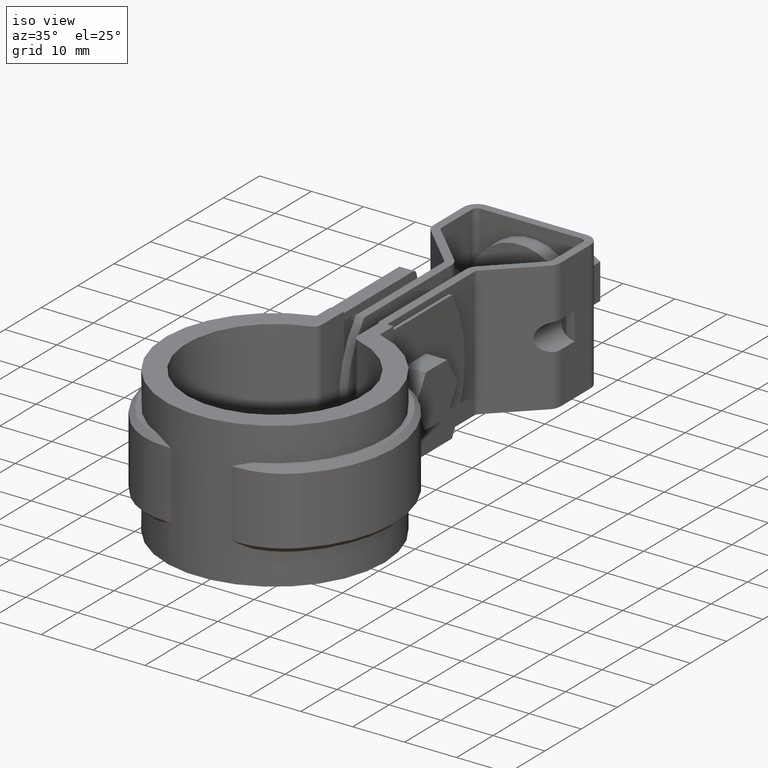
[diagram: clean part render]
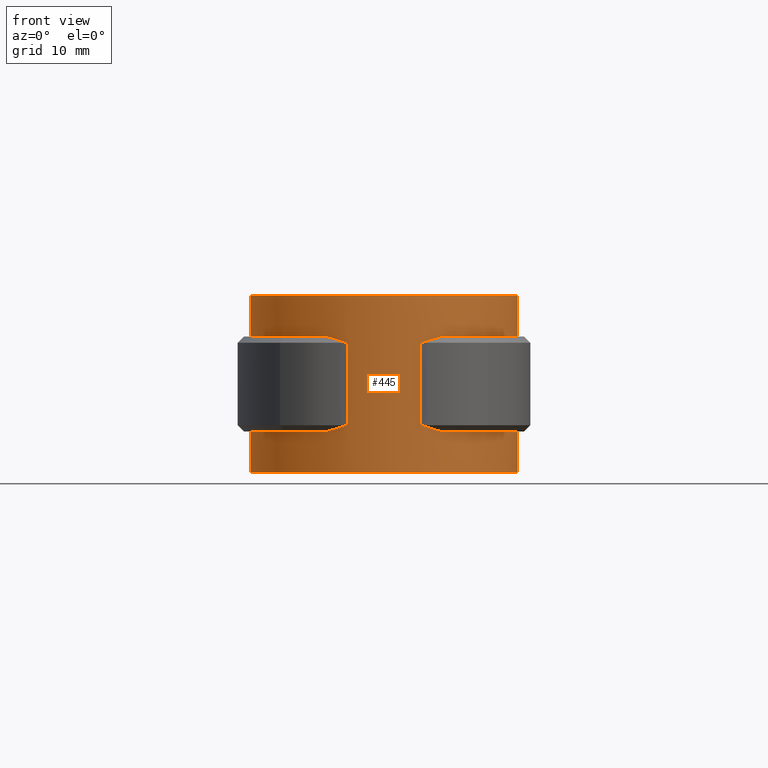
[diagram: tour spotlight — one face highlighted and labeled with its STEP entity id]
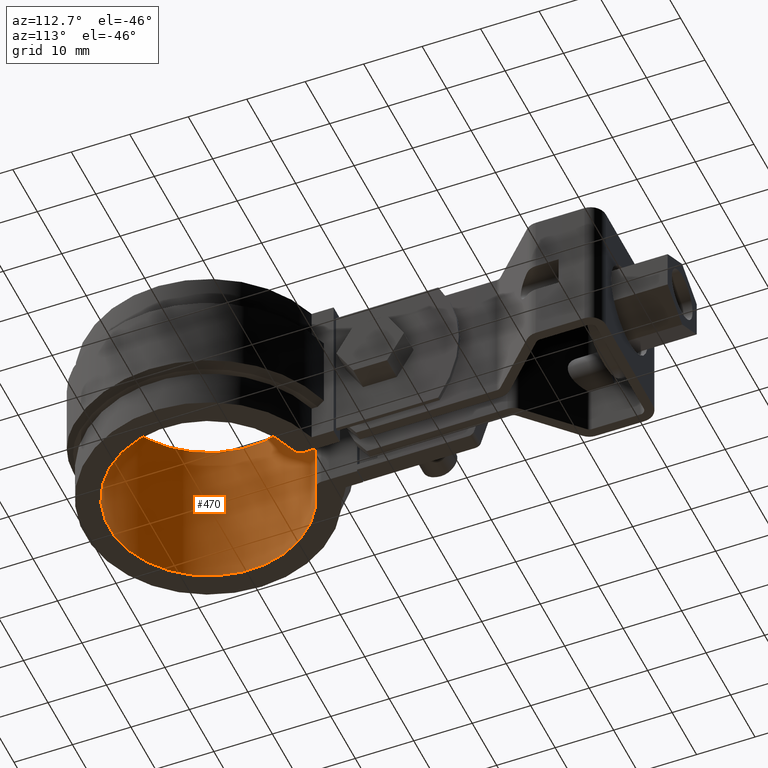
[diagram: tour spotlight — one face highlighted and labeled with its STEP entity id]
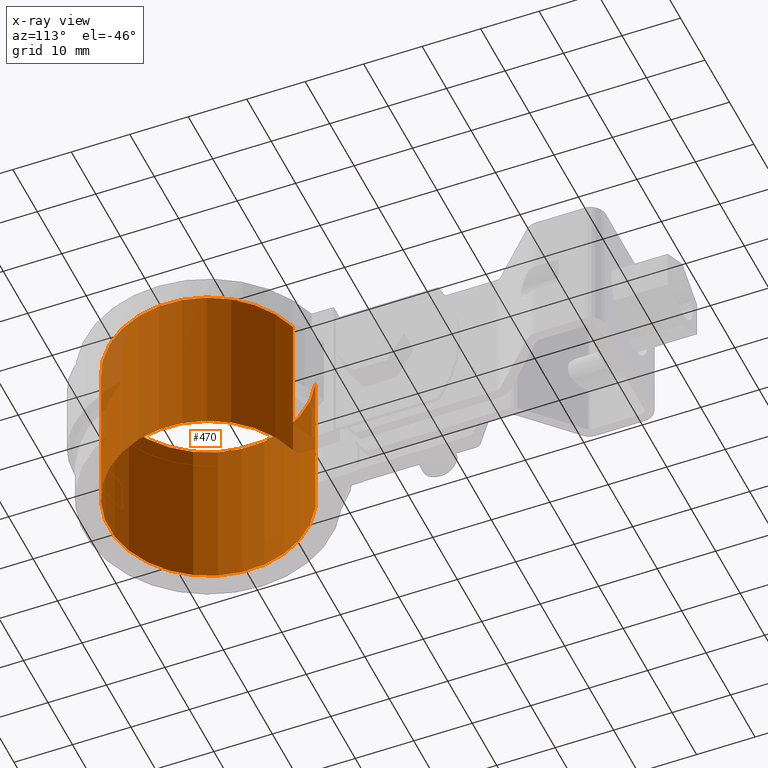
[diagram: x-ray of the same camera — body ghosted, this tour face saturated]
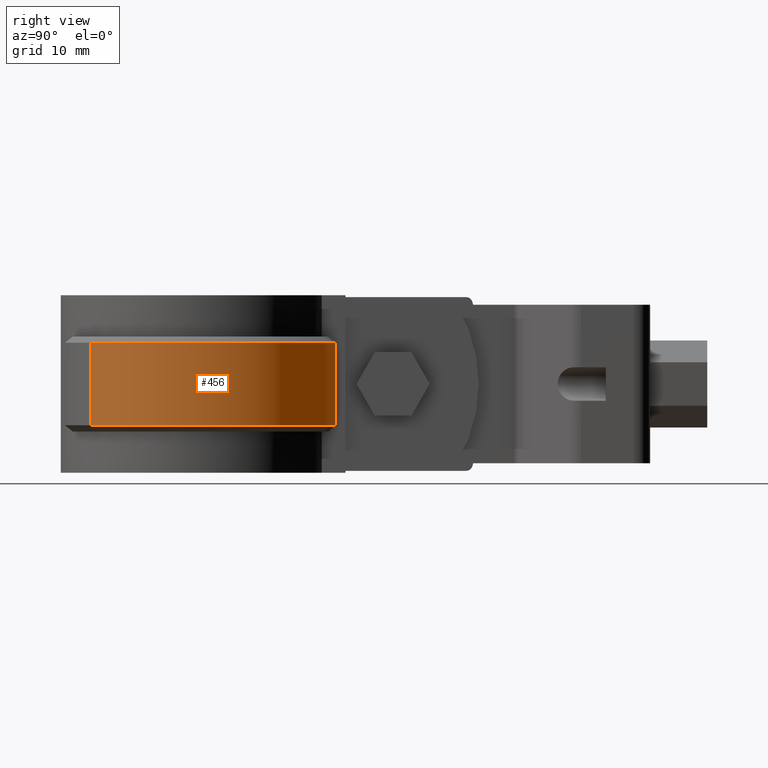
[diagram: tour spotlight — one face highlighted and labeled with its STEP entity id]
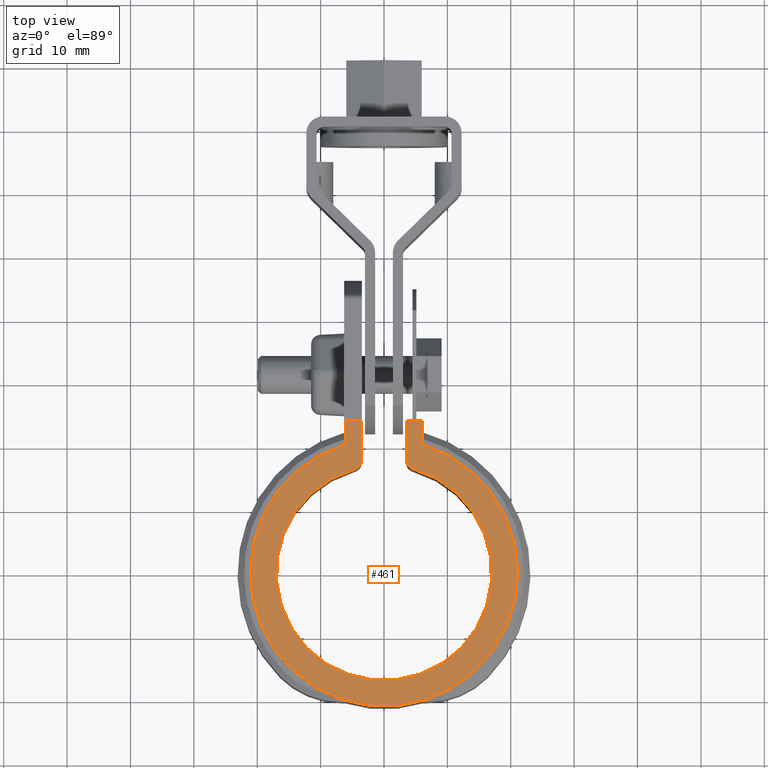
[diagram: tour spotlight — one face highlighted and labeled with its STEP entity id]
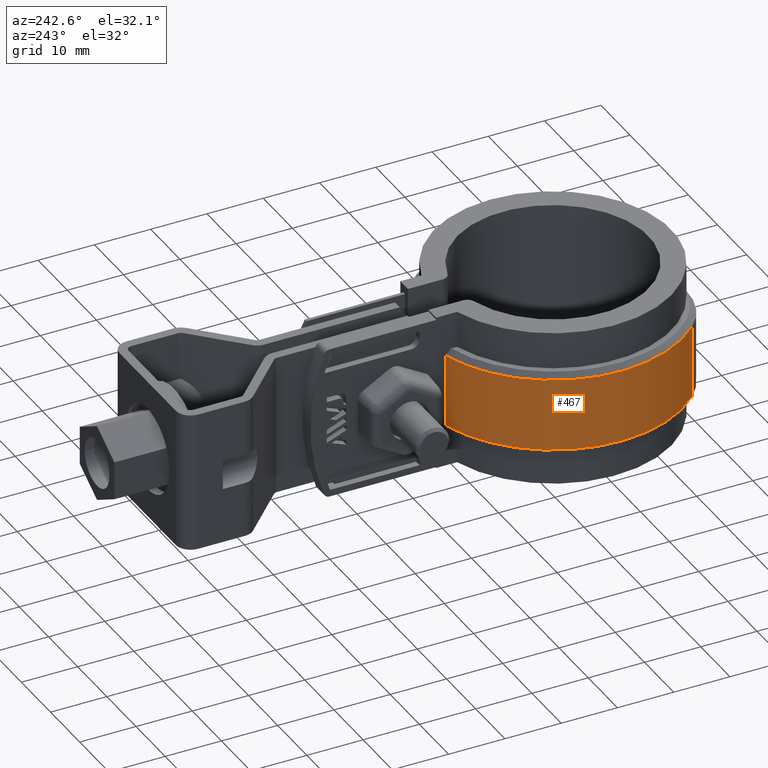
[diagram: tour spotlight — one face highlighted and labeled with its STEP entity id]
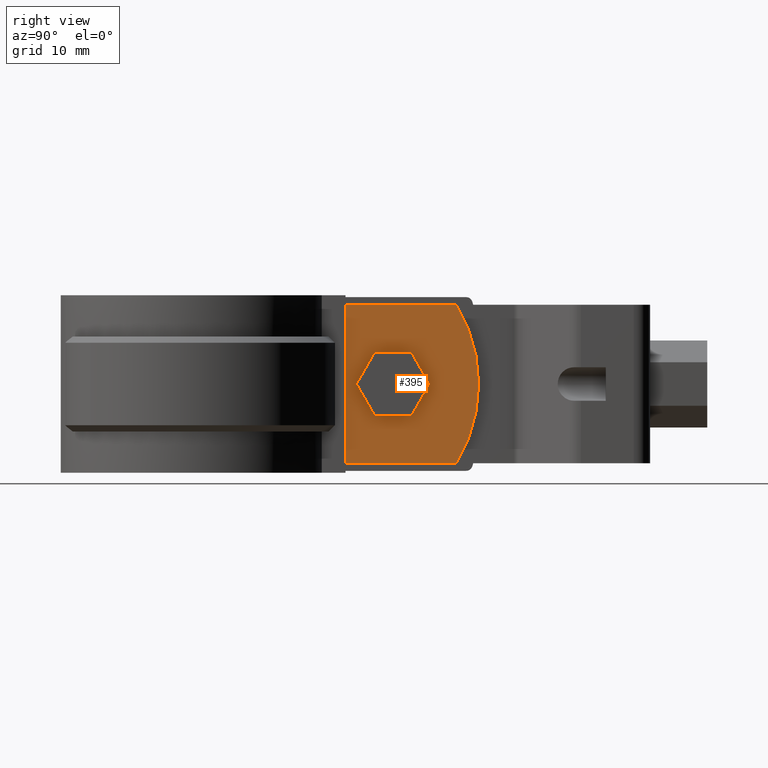
[diagram: tour spotlight — one face highlighted and labeled with its STEP entity id]
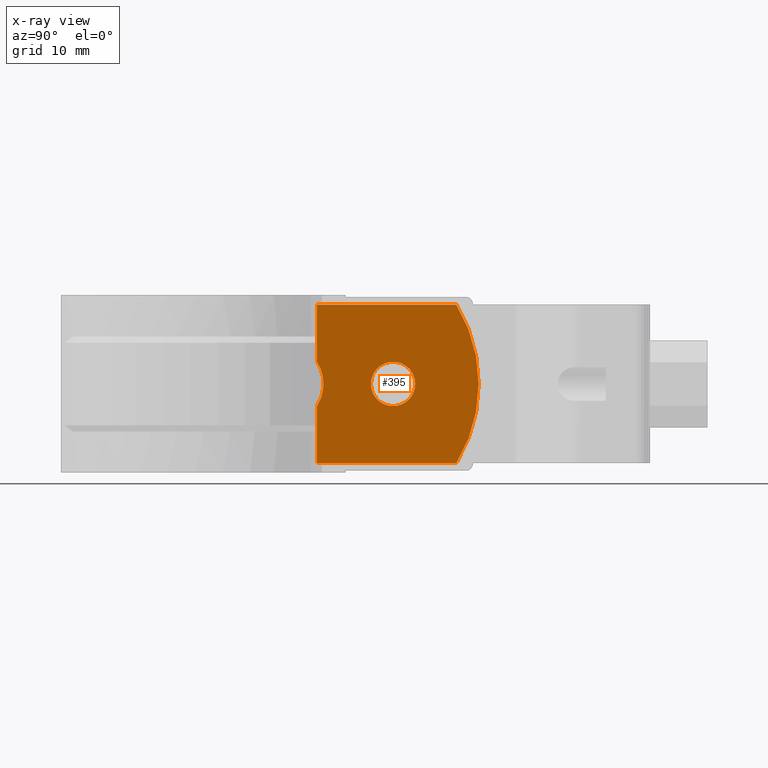
[diagram: x-ray of the same camera — body ghosted, this tour face saturated]
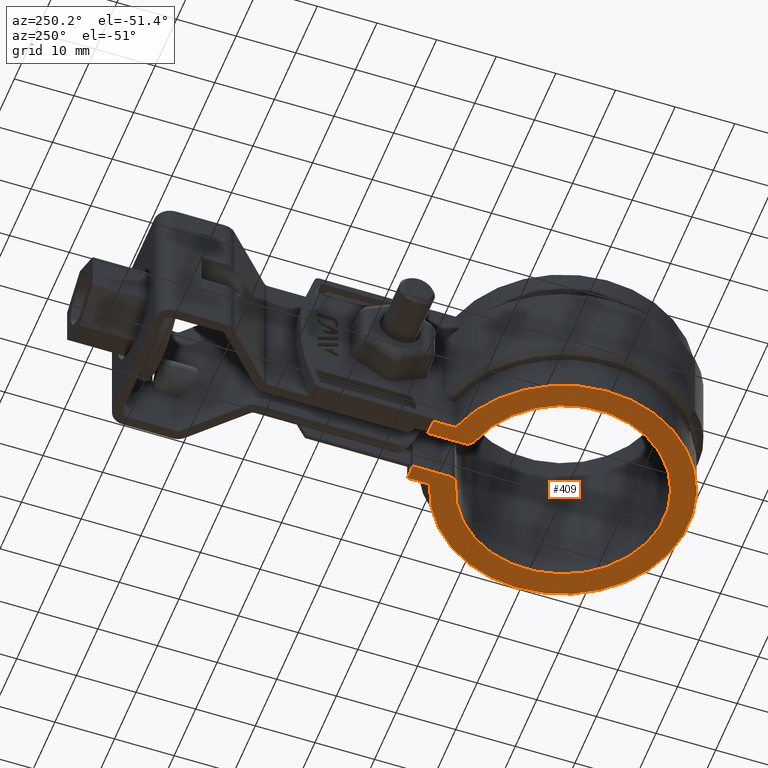
[diagram: tour spotlight — one face highlighted and labeled with its STEP entity id]
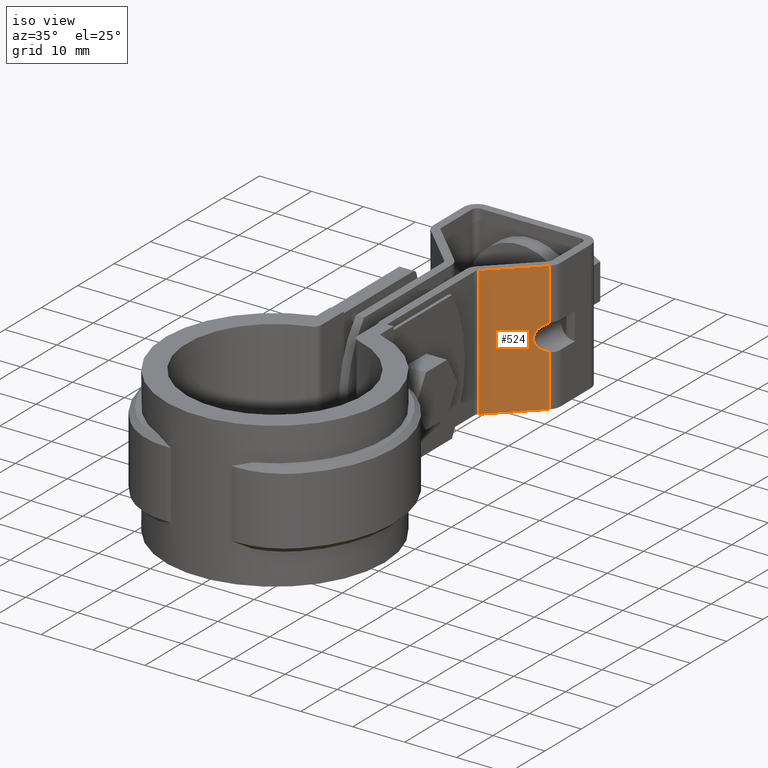
[diagram: tour spotlight — one face highlighted and labeled with its STEP entity id]
A machine part: a face-by-face anatomy tour. The part has 331 B-rep faces; the first image is the clean iso view, then the 8 largest visible faces are spotlighted one at a time (largest first), each with its STEP entity span.

Face 1 — front view, entity #445. In plain terms, the highlighted cylindrical surface (partial cylindrical patch) has radius 21.095 mm, axis along (0, 0, -1).
Definition (entity closure, byte-faithful):
#445 = ADVANCED_FACE( '', ( #866 ), #867, .T. );
#866 = FACE_OUTER_BOUND( '', #1959, .T. );
#867 = CYLINDRICAL_SURFACE( '', #1960, 21.0950000000000 );
#1959 = EDGE_LOOP( '', ( #4056, #4057, #4058, #4059, #4060, #4061, #4062, #4063, #4064, #4065, #4066, #4067, #4068, #4069, #4070, #4071, #4072, #4073, #4074, #4075 ) );
#1960 = AXIS2_PLACEMENT_3D( '', #4076, #4077, #4078 );
#4056 = ORIENTED_EDGE( '', *, *, #6408, .F. );
#4057 = ORIENTED_EDGE( '', *, *, #6409, .T. );
#4058 = ORIENTED_EDGE( '', *, *, #6410, .T. );
#4059 = ORIENTED_EDGE( '', *, *, #6411, .F. );
#4060 = ORIENTED_EDGE( '', *, *, #6412, .T. );
#4061 = ORIENTED_EDGE( '', *, *, #6413, .T. );
#4062 = ORIENTED_EDGE( '', *, *, #6414, .T. );
#4063 = ORIENTED_EDGE( '', *, *, #6266, .F. );
#4064 = ORIENTED_EDGE( '', *, *, #6256, .T. );
#4065 = ORIENTED_EDGE( '', *, *, #6415, .T. );
#4066 = ORIENTED_EDGE( '', *, *, #6416, .F. );
#4067 = ORIENTED_EDGE( '', *, *, #6417, .T. );
#4068 = ORIENTED_EDGE( '', *, *, #6418, .T. );
#4069 = ORIENTED_EDGE( '', *, *, #6419, .T. );
#4070 = ORIENTED_EDGE( '', *, *, #6420, .T. );
#4071 = ORIENTED_EDGE( '', *, *, #6407, .T. );
#4072 = ORIENTED_EDGE( '', *, *, #6421, .T. );
#4073 = ORIENTED_EDGE( '', *, *, #6422, .T. );
#4074 = ORIENTED_EDGE( '', *, *, #6423, .F. );
#4075 = ORIENTED_EDGE( '', *, *, #6272, .F. );
#4076 = CARTESIAN_POINT( '', ( -4.33680868994202E-015, 0.000000000000000, -26.5000000000000 ) );
#4077 = DIRECTION( '', ( 0.000000000000000, 0.000000000000000, -1.00000000000000 ) );
#4078 = DIRECTION( '', ( -1.00000000000000, 6.07153216591882E-017, 0.000000000000000 ) );
#6256 = EDGE_CURVE( '', #7274, #7272, #7275, .T. );
#6266 = EDGE_CURVE( '', #7274, #7293, #7294, .T. );
#6272 = EDGE_CURVE( '', #7303, #7290, #7305, .T. );
#6407 = EDGE_CURVE( '', #7526, #7532, #7534, .T. );
#6408 = EDGE_CURVE( '', #7535, #7303, #7536, .T. );
#6409 = EDGE_CURVE( '', #7535, #7537, #7538, .F. );
#6410 = EDGE_CURVE( '', #7537, #7539, #7540, .T. );
#6411 = EDGE_CURVE( '', #7541, #7539, #7542, .T. );
#6412 = EDGE_CURVE( '', #7541, #7543, #7544, .F. );
#6413 = EDGE_CURVE( '', #7543, #7545, #7546, .T. );
#6414 = EDGE_CURVE( '', #7545, #7293, #7547, .T. );
#6415 = EDGE_CURVE( '', #7272, #7548, #7549, .T. );
#6416 = EDGE_CURVE( '', #7550, #7548, #7551, .T. );
#6417 = EDGE_CURVE( '', #7550, #7552, #7553, .F. );
#6418 = EDGE_CURVE( '', #7552, #7554, #7555, .F. );
#6419 = EDGE_CURVE( '', #7554, #7556, #7557, .T. );
#6420 = EDGE_CURVE( '', #7556, #7526, #7558, .T. );
#6421 = EDGE_CURVE( '', #7532, #7559, #7560, .T. );
#6422 = EDGE_CURVE( '', #7559, #7561, #7562, .T. );
#6423 = EDGE_CURVE( '', #7290, #7561, #7563, .T. );
#7272 = VERTEX_POINT( '', #9609 );
#7274 = VERTEX_POINT( '', #9612 );
#7275 = CIRCLE( '', #9613, 21.0950000000000 );
#7290 = VERTEX_POINT( '', #9632 );
#7293 = VERTEX_POINT( '', #9637 );
#7294 = LINE( '', #9638, #9639 );
#7303 = VERTEX_POINT( '', #9656 );
#7305 = LINE( '', #9659, #9660 );
#7526 = VERTEX_POINT( '', #10683 );
#7532 = VERTEX_POINT( '', #10691 );
#7534 = B_SPLINE_CURVE_WITH_KNOTS( '', 3, ( #10693, #10694, #10695, #10696 ), .UNSPECIFIED., .F., .F., ( 4, 4 ), ( 0.00442606500985391, 0.00694777175343142 ), .UNSPECIFIED. );
#7535 = VERTEX_POINT( '', #10697 );
#7536 = CIRCLE( '', #10698, 21.0950000000000 );
#7537 = VERTEX_POINT( '', #10699 );
#7538 = B_SPLINE_CURVE_WITH_KNOTS( '', 3, ( #10700, #10701, #10702, #10703 ), .UNSPECIFIED., .F., .F., ( 4, 4 ), ( 0.00442606500985392, 0.00694777175343142 ), .UNSPECIFIED. );
#7539 = VERTEX_POINT( '', #10704 );
#7540 = ELLIPSE( '', #10705, 29.8328350982605, 21.0950000000000 );
#7541 = VERTEX_POINT( '', #10706 );
#7542 = LINE( '', #10707, #10708 );
#7543 = VERTEX_POINT( '', #10709 );
#7544 = ELLIPSE( '', #10710, 29.8328350982605, 21.0950000000000 );
#7545 = VERTEX_POINT( '', #10711 );
#7546 = B_SPLINE_CURVE_WITH_KNOTS( '', 3, ( #10712, #10713, #10714, #10715 ), .UNSPECIFIED., .F., .F., ( 4, 4 ), ( 0.00442606500985394, 0.00694777175343143 ), .UNSPECIFIED. );
#7547 = CIRCLE( '', #10716, 21.0950000000000 );
#7548 = VERTEX_POINT( '', #10717 );
#7549 = LINE( '', #10718, #10719 );
#7550 = VERTEX_POINT( '', #10720 );
#7551 = CIRCLE( '', #10721, 21.0950000000000 );
#7552 = VERTEX_POINT( '', #10722 );
#7553 = B_SPLINE_CURVE_WITH_KNOTS( '', 3, ( #10723, #10724, #10725, #10726 ), .UNSPECIFIED., .F., .F., ( 4, 4 ), ( 0.00442606500985392, 0.00694777175343141 ), .UNSPECIFIED. );
#7554 = VERTEX_POINT( '', #10727 );
#7555 = ELLIPSE( '', #10728, 29.8328350982605, 21.0950000000000 );
#7556 = VERTEX_POINT( '', #10729 );
#7557 = LINE( '', #10730, #10731 );
#7558 = ELLIPSE( '', #10732, 29.8328350982605, 21.0950000000000 );
#7559 = VERTEX_POINT( '', #10733 );
#7560 = CIRCLE( '', #10734, 21.0950000000000 );
#7561 = VERTEX_POINT( '', #10735 );
#7562 = LINE( '', #10736, #10737 );
#7563 = CIRCLE( '', #10738, 21.0950000000000 );
#9609 = CARTESIAN_POINT( '', ( 6.10000000000000, 20.1937867919813, -26.5000000000000 ) );
#9612 = CARTESIAN_POINT( '', ( -6.10000000000000, 20.1937867919813, -26.5000000000000 ) );
#9613 = AXIS2_PLACEMENT_3D( '', #12473, #12474, #12475 );
#9632 = CARTESIAN_POINT( '', ( -6.10000000000000, 20.1937867919813, 1.50000000000000 ) );
#9637 = CARTESIAN_POINT( '', ( -6.10000000000000, 20.1937867919813, -20.0000000000000 ) );
#9638 = CARTESIAN_POINT( '', ( -6.10000000000000, 20.1937867919813, -26.5000000000000 ) );
#9639 = VECTOR( '', #12491, 1000.00000000000 );
#9656 = CARTESIAN_POINT( '', ( -6.10000000000000, 20.1937867919813, -5.00000000000000 ) );
#9659 = CARTESIAN_POINT( '', ( -6.10000000000000, 20.1937867919813, -26.5000000000000 ) );
#9660 = VECTOR( '', #12495, 1000.00000000000 );
#10683 = CARTESIAN_POINT( '', ( 6.74778667416211, -19.9866555481401, -5.70665554814012 ) );
#10691 = CARTESIAN_POINT( '', ( 9.00579582913148, -19.0760233404135, -5.00000000000000 ) );
#10693 = CARTESIAN_POINT( '', ( 6.74778667416212, -19.9866555481401, -5.70665554814012 ) );
#10694 = CARTESIAN_POINT( '', ( 7.50699175994535, -19.7303368284591, -5.45033682845913 ) );
#10695 = CARTESIAN_POINT( '', ( 8.25945996055681, -19.4283687078098, -5.21289271223883 ) );
#10696 = CARTESIAN_POINT( '', ( 9.00579582913148, -19.0760233404134, -5.00000000000000 ) );
#10697 = CARTESIAN_POINT( '', ( -9.00579582913148, -19.0760233404135, -5.00000000000000 ) );
#10698 = AXIS2_PLACEMENT_3D( '', #12634, #12635, #12636 );
#10699 = CARTESIAN_POINT( '', ( -6.74778667416212, -19.9866555481401, -5.70665554814012 ) );
#10700 = CARTESIAN_POINT( '', ( -6.74778667416212, -19.9866555481401, -5.70665554814012 ) );
#10701 = CARTESIAN_POINT( '', ( -7.50699175994536, -19.7303368284591, -5.45033682845913 ) );
#10702 = CARTESIAN_POINT( '', ( -8.25945996055681, -19.4283687078099, -5.21289271223882 ) );
#10703 = CARTESIAN_POINT( '', ( -9.00579582913148, -19.0760233404135, -5.00000000000000 ) );
#10704 = CARTESIAN_POINT( '', ( -5.80694627149245, -20.2800000000000, -6.00000000000000 ) );
#10705 = AXIS2_PLACEMENT_3D( '', #12637, #12638, #12639 );
#10706 = CARTESIAN_POINT( '', ( -5.80694627149245, -20.2800000000000, -19.0000000000000 ) );
#10707 = CARTESIAN_POINT( '', ( -5.80694627149245, -20.2800000000000, -20.0000000000000 ) );
#10708 = VECTOR( '', #12640, 1000.00000000000 );
#10709 = CARTESIAN_POINT( '', ( -6.74778667416212, -19.9866555481401, -19.2933444518599 ) );
#10710 = AXIS2_PLACEMENT_3D( '', #12641, #12642, #12643 );
#10711 = CARTESIAN_POINT( '', ( -9.00579582913148, -19.0760233404135, -20.0000000000000 ) );
#10712 = CARTESIAN_POINT( '', ( -6.74778667416213, -19.9866555481401, -19.2933444518599 ) );
#10713 = CARTESIAN_POINT( '', ( -7.50699175994536, -19.7303368284591, -19.5496631715409 ) );
#10714 = CARTESIAN_POINT( '', ( -8.25945996055681, -19.4283687078099, -19.7871072877612 ) );
#10715 = CARTESIAN_POINT( '', ( -9.00579582913148, -19.0760233404135, -20.0000000000000 ) );
#10716 = AXIS2_PLACEMENT_3D( '', #12644, #12645, #12646 );
#10717 = CARTESIAN_POINT( '', ( 6.10000000000000, 20.1937867919813, -20.0000000000000 ) );
#10718 = CARTESIAN_POINT( '', ( 6.10000000000000, 20.1937867919813, -26.5000000000000 ) );
#10719 = VECTOR( '', #12647, 1000.00000000000 );
#10720 = CARTESIAN_POINT( '', ( 9.00579582913148, -19.0760233404135, -20.0000000000000 ) );
#10721 = AXIS2_PLACEMENT_3D( '', #12648, #12649, #12650 );
#10722 = CARTESIAN_POINT( '', ( 6.74778667416212, -19.9866555481401, -19.2933444518599 ) );
#10723 = CARTESIAN_POINT( '', ( 6.74778667416213, -19.9866555481401, -19.2933444518599 ) );
#10724 = CARTESIAN_POINT( '', ( 7.50699175994536, -19.7303368284591, -19.5496631715409 ) );
#10725 = CARTESIAN_POINT( '', ( 8.25945996055681, -19.4283687078099, -19.7871072877612 ) );
#10726 = CARTESIAN_POINT( '', ( 9.00579582913148, -19.0760233404135, -20.0000000000000 ) );
#10727 = CARTESIAN_POINT( '', ( 5.80694627149244, -20.2800000000000, -19.0000000000000 ) );
#10728 = AXIS2_PLACEMENT_3D( '', #12651, #12652, #12653 );
#10729 = CARTESIAN_POINT( '', ( 5.80694627149244, -20.2800000000000, -6.00000000000000 ) );
#10730 = CARTESIAN_POINT( '', ( 5.80694627149244, -20.2800000000000, -20.0000000000000 ) );
#10731 = VECTOR( '', #12654, 1000.00000000000 );
#10732 = AXIS2_PLACEMENT_3D( '', #12655, #12656, #12657 );
#10733 = CARTESIAN_POINT( '', ( 6.10000000000000, 20.1937867919813, -5.00000000000000 ) );
#10734 = AXIS2_PLACEMENT_3D( '', #12658, #12659, #12660 );
#10735 = CARTESIAN_POINT( '', ( 6.10000000000000, 20.1937867919813, 1.50000000000000 ) );
#10736 = CARTESIAN_POINT( '', ( 6.10000000000000, 20.1937867919813, -26.5000000000000 ) );
#10737 = VECTOR( '', #12661, 1000.00000000000 );
#10738 = AXIS2_PLACEMENT_3D( '', #12662, #12663, #12664 );
#12473 = CARTESIAN_POINT( '', ( -4.33680868994202E-015, 0.000000000000000, -26.5000000000000 ) );
#12474 = DIRECTION( '', ( 0.000000000000000, 0.000000000000000, 1.00000000000000 ) );
#12475 = DIRECTION( '', ( 1.00000000000000, -6.07153216591882E-017, 0.000000000000000 ) );
#12491 = DIRECTION( '', ( 0.000000000000000, 0.000000000000000, 1.00000000000000 ) );
#12495 = DIRECTION( '', ( 0.000000000000000, 0.000000000000000, 1.00000000000000 ) );
#12634 = CARTESIAN_POINT( '', ( -8.67361737988404E-016, -6.93889390390723E-015, -5.00000000000000 ) );
#12635 = DIRECTION( '', ( 0.000000000000000, 0.000000000000000, -1.00000000000000 ) );
#12636 = DIRECTION( '', ( 1.00000000000000, -5.55111512312578E-017, 0.000000000000000 ) );
#12637 = CARTESIAN_POINT( '', ( -4.33680868994202E-015, 0.000000000000000, 14.2800000000000 ) );
#12638 = DIRECTION( '', ( 0.000000000000000, -0.707106781186548, 0.707106781186548 ) );
#12639 = DIRECTION( '', ( 0.000000000000000, 0.707106781186548, 0.707106781186548 ) );
#12640 = DIRECTION( '', ( 0.000000000000000, 0.000000000000000, 1.00000000000000 ) );
#12641 = CARTESIAN_POINT( '', ( -4.33680868994202E-015, 0.000000000000000, -39.2800000000000 ) );
#12642 = DIRECTION( '', ( 0.000000000000000, 0.707106781186548, 0.707106781186548 ) );
#12643 = DIRECTION( '', ( 0.000000000000000, -0.707106781186548, 0.707106781186548 ) );
#12644 = CARTESIAN_POINT( '', ( -8.67361737988404E-016, -6.93889390390723E-015, -20.0000000000000 ) );
#12645 = DIRECTION( '', ( 0.000000000000000, 0.000000000000000, -1.00000000000000 ) );
#12646 = DIRECTION( '', ( 1.00000000000000, -5.55111512312578E-017, 0.000000000000000 ) );
#12647 = DIRECTION( '', ( 0.000000000000000, 0.000000000000000, 1.00000000000000 ) );
#12648 = CARTESIAN_POINT( '', ( -8.67361737988404E-016, -6.93889390390723E-015, -20.0000000000000 ) );
#12649 = DIRECTION( '', ( 0.000000000000000, 0.000000000000000, 1.00000000000000 ) );
#12650 = DIRECTION( '', ( 1.00000000000000, -5.55111512312578E-017, 0.000000000000000 ) );
#12651 = CARTESIAN_POINT( '', ( -4.33680868994202E-015, 0.000000000000000, -39.2800000000000 ) );
#12652 = DIRECTION( '', ( 0.000000000000000, 0.707106781186548, 0.707106781186548 ) );
#12653 = DIRECTION( '', ( 0.000000000000000, -0.707106781186548, 0.707106781186548 ) );
#12654 = DIRECTION( '', ( 0.000000000000000, 0.000000000000000, 1.00000000000000 ) );
#12655 = CARTESIAN_POINT( '', ( -4.33680868994202E-015, 0.000000000000000, 14.2800000000000 ) );
#12656 = DIRECTION( '', ( 0.000000000000000, -0.707106781186548, 0.707106781186548 ) );
#12657 = DIRECTION( '', ( 0.000000000000000, 0.707106781186548, 0.707106781186548 ) );
#12658 = CARTESIAN_POINT( '', ( -8.67361737988404E-016, -6.93889390390723E-015, -5.00000000000000 ) );
#12659 = DIRECTION( '', ( 0.000000000000000, 0.000000000000000, 1.00000000000000 ) );
#12660 = DIRECTION( '', ( 1.00000000000000, -5.55111512312578E-017, 0.000000000000000 ) );
#12661 = DIRECTION( '', ( 0.000000000000000, 0.000000000000000, 1.00000000000000 ) );
#12662 = CARTESIAN_POINT( '', ( -4.33680868994202E-015, 0.000000000000000, 1.50000000000000 ) );
#12663 = DIRECTION( '', ( 0.000000000000000, 0.000000000000000, 1.00000000000000 ) );
#12664 = DIRECTION( '', ( 1.00000000000000, -6.07153216591882E-017, 0.000000000000000 ) );

Face 2 — auxiliary view, entity #470. An x-ray twin of the same camera follows (body ghosted, this face saturated) — the face is partly hidden behind the body. In plain terms, the highlighted cylindrical surface (partial cylindrical patch) has radius 17 mm, axis along (0, 0, -1).
Definition (entity closure, byte-faithful):
#470 = ADVANCED_FACE( '', ( #916 ), #917, .F. );
#916 = FACE_OUTER_BOUND( '', #2009, .T. );
#917 = CYLINDRICAL_SURFACE( '', #2010, 17.0000000000000 );
#2009 = EDGE_LOOP( '', ( #4258, #4259, #4260, #4261 ) );
#2010 = AXIS2_PLACEMENT_3D( '', #4262, #4263, #4264 );
#4258 = ORIENTED_EDGE( '', *, *, #6457, .T. );
#4259 = ORIENTED_EDGE( '', *, *, #6466, .T. );
#4260 = ORIENTED_EDGE( '', *, *, #6261, .F. );
#4261 = ORIENTED_EDGE( '', *, *, #6467, .T. );
#4262 = CARTESIAN_POINT( '', ( 0.000000000000000, 0.000000000000000, -74.7559907814303 ) );
#4263 = DIRECTION( '', ( 0.000000000000000, 0.000000000000000, -1.00000000000000 ) );
#4264 = DIRECTION( '', ( -1.00000000000000, 0.000000000000000, 0.000000000000000 ) );
#6261 = EDGE_CURVE( '', #7282, #7284, #7285, .F. );
#6457 = EDGE_CURVE( '', #7613, #7611, #7614, .F. );
#6466 = EDGE_CURVE( '', #7611, #7284, #7625, .F. );
#6467 = EDGE_CURVE( '', #7282, #7613, #7626, .T. );
#7282 = VERTEX_POINT( '', #9623 );
#7284 = VERTEX_POINT( '', #9625 );
#7285 = CIRCLE( '', #9626, 17.0000000000000 );
#7611 = VERTEX_POINT( '', #10812 );
#7613 = VERTEX_POINT( '', #10814 );
#7614 = CIRCLE( '', #10815, 17.0000000000000 );
#7625 = LINE( '', #10829, #10830 );
#7626 = LINE( '', #10831, #10832 );
#9623 = CARTESIAN_POINT( '', ( -4.59459459459460, 16.3673363902415, -26.5000000000000 ) );
#9625 = CARTESIAN_POINT( '', ( 4.59459459459459, 16.3673363902415, -26.5000000000000 ) );
#9626 = AXIS2_PLACEMENT_3D( '', #12482, #12483, #12484 );
#10812 = CARTESIAN_POINT( '', ( 4.59459459459459, 16.3673363902415, 1.50000000000000 ) );
#10814 = CARTESIAN_POINT( '', ( -4.59459459459460, 16.3673363902415, 1.50000000000000 ) );
#10815 = AXIS2_PLACEMENT_3D( '', #12718, #12719, #12720 );
#10829 = CARTESIAN_POINT( '', ( 4.59459459459459, 16.3673363902415, -74.7559907814303 ) );
#10830 = VECTOR( '', #12739, 1000.00000000000 );
#10831 = CARTESIAN_POINT( '', ( -4.59459459459460, 16.3673363902415, -74.7559907814303 ) );
#10832 = VECTOR( '', #12740, 1000.00000000000 );
#12482 = CARTESIAN_POINT( '', ( 0.000000000000000, 0.000000000000000, -26.5000000000000 ) );
#12483 = DIRECTION( '', ( 0.000000000000000, 0.000000000000000, -1.00000000000000 ) );
#12484 = DIRECTION( '', ( -1.00000000000000, 0.000000000000000, 0.000000000000000 ) );
#12718 = CARTESIAN_POINT( '', ( 0.000000000000000, 0.000000000000000, 1.50000000000000 ) );
#12719 = DIRECTION( '', ( 0.000000000000000, 0.000000000000000, -1.00000000000000 ) );
#12720 = DIRECTION( '', ( -1.00000000000000, 0.000000000000000, 0.000000000000000 ) );
#12739 = DIRECTION( '', ( 0.000000000000000, 0.000000000000000, 1.00000000000000 ) );
#12740 = DIRECTION( '', ( 0.000000000000000, 0.000000000000000, 1.00000000000000 ) );

Face 3 — right view, entity #456. In plain terms, the highlighted cylindrical surface (partial cylindrical patch) has radius 23.095 mm, axis along (0, 0, -1).
Definition (entity closure, byte-faithful):
#456 = ADVANCED_FACE( '', ( #888 ), #889, .T. );
#888 = FACE_OUTER_BOUND( '', #1981, .T. );
#889 = CYLINDRICAL_SURFACE( '', #1982, 23.0950000000000 );
#1981 = EDGE_LOOP( '', ( #4154, #4155, #4156, #4157 ) );
#1982 = AXIS2_PLACEMENT_3D( '', #4158, #4159, #4160 );
#4154 = ORIENTED_EDGE( '', *, *, #6433, .T. );
#4155 = ORIENTED_EDGE( '', *, *, #6450, .T. );
#4156 = ORIENTED_EDGE( '', *, *, #6451, .F. );
#4157 = ORIENTED_EDGE( '', *, *, #6447, .T. );
#4158 = CARTESIAN_POINT( '', ( -8.67361737988404E-016, -6.93889390390723E-015, -20.0000000000000 ) );
#4159 = DIRECTION( '', ( 0.000000000000000, 0.000000000000000, -1.00000000000000 ) );
#4160 = DIRECTION( '', ( 0.275275955036381, 0.961365252429485, 0.000000000000000 ) );
#6433 = EDGE_CURVE( '', #7579, #7577, #7580, .T. );
#6447 = EDGE_CURVE( '', #7596, #7579, #7600, .T. );
#6450 = EDGE_CURVE( '', #7577, #7528, #7603, .F. );
#6451 = EDGE_CURVE( '', #7596, #7528, #7604, .T. );
#7528 = VERTEX_POINT( '', #10686 );
#7577 = VERTEX_POINT( '', #10760 );
#7579 = VERTEX_POINT( '', #10765 );
#7580 = LINE( '', #10766, #10767 );
#7596 = VERTEX_POINT( '', #10791 );
#7600 = CIRCLE( '', #10796, 23.0950000000000 );
#7603 = CIRCLE( '', #10800, 23.0950000000000 );
#7604 = LINE( '', #10801, #10802 );
#10686 = CARTESIAN_POINT( '', ( 16.4128629004502, -16.2479831490258, -6.00000000000000 ) );
#10760 = CARTESIAN_POINT( '', ( 6.10000000000000, 22.2748518513591, -6.00000000000000 ) );
#10765 = CARTESIAN_POINT( '', ( 6.10000000000000, 22.2748518513591, -19.0000000000000 ) );
#10766 = CARTESIAN_POINT( '', ( 6.10000000000000, 22.2748518513591, -20.0000000000000 ) );
#10767 = VECTOR( '', #12673, 1000.00000000000 );
#10791 = CARTESIAN_POINT( '', ( 16.4128629004502, -16.2479831490258, -19.0000000000000 ) );
#10796 = AXIS2_PLACEMENT_3D( '', #12698, #12699, #12700 );
#10800 = AXIS2_PLACEMENT_3D( '', #12705, #12706, #12707 );
#10801 = CARTESIAN_POINT( '', ( 16.4128629004502, -16.2479831490258, -20.0000000000000 ) );
#10802 = VECTOR( '', #12708, 1000.00000000000 );
#12673 = DIRECTION( '', ( 0.000000000000000, 0.000000000000000, 1.00000000000000 ) );
#12698 = CARTESIAN_POINT( '', ( -8.67361737988404E-016, -6.93889390390723E-015, -19.0000000000000 ) );
#12699 = DIRECTION( '', ( 0.000000000000000, 0.000000000000000, 1.00000000000000 ) );
#12700 = DIRECTION( '', ( 1.00000000000000, 0.000000000000000, 0.000000000000000 ) );
#12705 = CARTESIAN_POINT( '', ( -8.67361737988404E-016, -6.93889390390723E-015, -6.00000000000000 ) );
#12706 = DIRECTION( '', ( 0.000000000000000, 0.000000000000000, 1.00000000000000 ) );
#12707 = DIRECTION( '', ( 1.00000000000000, 0.000000000000000, 0.000000000000000 ) );
#12708 = DIRECTION( '', ( 0.000000000000000, 0.000000000000000, 1.00000000000000 ) );

Face 4 — top view, entity #461. In plain terms, the highlighted planar face has unit normal (0, 0, 1).
Definition (entity closure, byte-faithful):
#461 = ADVANCED_FACE( '', ( #898 ), #899, .T. );
#898 = FACE_OUTER_BOUND( '', #1991, .T. );
#899 = PLANE( '', #1992 );
#1991 = EDGE_LOOP( '', ( #4189, #4190, #4191, #4192, #4193, #4194, #4195, #4196, #4197, #4198 ) );
#1992 = AXIS2_PLACEMENT_3D( '', #4199, #4200, #4201 );
#4189 = ORIENTED_EDGE( '', *, *, #6430, .T. );
#4190 = ORIENTED_EDGE( '', *, *, #6454, .T. );
#4191 = ORIENTED_EDGE( '', *, *, #6455, .T. );
#4192 = ORIENTED_EDGE( '', *, *, #6456, .T. );
#4193 = ORIENTED_EDGE( '', *, *, #6457, .F. );
#4194 = ORIENTED_EDGE( '', *, *, #6458, .T. );
#4195 = ORIENTED_EDGE( '', *, *, #6427, .T. );
#4196 = ORIENTED_EDGE( '', *, *, #6273, .T. );
#4197 = ORIENTED_EDGE( '', *, *, #6264, .T. );
#4198 = ORIENTED_EDGE( '', *, *, #6423, .T. );
#4199 = CARTESIAN_POINT( '', ( -4.33680868994202E-015, 0.000000000000000, 1.50000000000000 ) );
#4200 = DIRECTION( '', ( 0.000000000000000, 0.000000000000000, 1.00000000000000 ) );
#4201 = DIRECTION( '', ( -1.00000000000000, 6.07153216591882E-017, 0.000000000000000 ) );
#6264 = EDGE_CURVE( '', #7289, #7290, #7291, .T. );
#6273 = EDGE_CURVE( '', #7306, #7289, #7307, .T. );
#6423 = EDGE_CURVE( '', #7290, #7561, #7563, .T. );
#6427 = EDGE_CURVE( '', #7569, #7306, #7570, .T. );
#6430 = EDGE_CURVE( '', #7561, #7572, #7574, .T. );
#6454 = EDGE_CURVE( '', #7572, #7607, #7608, .T. );
#6455 = EDGE_CURVE( '', #7607, #7609, #7610, .T. );
#6456 = EDGE_CURVE( '', #7609, #7611, #7612, .F. );
#6457 = EDGE_CURVE( '', #7613, #7611, #7614, .F. );
#6458 = EDGE_CURVE( '', #7613, #7569, #7615, .F. );
#7289 = VERTEX_POINT( '', #9631 );
#7290 = VERTEX_POINT( '', #9632 );
#7291 = LINE( '', #9633, #9634 );
#7306 = VERTEX_POINT( '', #9661 );
#7307 = LINE( '', #9662, #9663 );
#7561 = VERTEX_POINT( '', #10735 );
#7563 = CIRCLE( '', #10738, 21.0950000000000 );
#7569 = VERTEX_POINT( '', #10747 );
#7570 = LINE( '', #10748, #10749 );
#7572 = VERTEX_POINT( '', #10752 );
#7574 = LINE( '', #10755, #10756 );
#7607 = VERTEX_POINT( '', #10806 );
#7608 = LINE( '', #10807, #10808 );
#7609 = VERTEX_POINT( '', #10809 );
#7610 = LINE( '', #10810, #10811 );
#7611 = VERTEX_POINT( '', #10812 );
#7612 = CIRCLE( '', #10813, 1.50000000000000 );
#7613 = VERTEX_POINT( '', #10814 );
#7614 = CIRCLE( '', #10815, 17.0000000000000 );
#7615 = CIRCLE( '', #10816, 1.50000000000000 );
#9631 = CARTESIAN_POINT( '', ( -6.10000000000000, 23.9443584449549, 1.50000000000000 ) );
#9632 = CARTESIAN_POINT( '', ( -6.10000000000000, 20.1937867919813, 1.50000000000000 ) );
#9633 = CARTESIAN_POINT( '', ( -6.10000000000000, 24.4800000000000, 1.50000000000000 ) );
#9634 = VECTOR( '', #12489, 1000.00000000000 );
#9661 = CARTESIAN_POINT( '', ( -3.50000000000000, 23.9443584449549, 1.50000000000000 ) );
#9662 = CARTESIAN_POINT( '', ( -4.33680868994202E-015, 23.9443584449549, 1.50000000000000 ) );
#9663 = VECTOR( '', #12496, 1000.00000000000 );
#10735 = CARTESIAN_POINT( '', ( 6.10000000000000, 20.1937867919813, 1.50000000000000 ) );
#10738 = AXIS2_PLACEMENT_3D( '', #12662, #12663, #12664 );
#10747 = CARTESIAN_POINT( '', ( -3.50000000000000, 17.8115131305569, 1.50000000000000 ) );
#10748 = CARTESIAN_POINT( '', ( -3.50000000000000, 16.6306952650814, 1.50000000000000 ) );
#10749 = VECTOR( '', #12668, 1000.00000000000 );
#10752 = CARTESIAN_POINT( '', ( 6.10000000000000, 23.9443584449549, 1.50000000000000 ) );
#10755 = CARTESIAN_POINT( '', ( 6.10000000000000, 20.1937867919813, 1.50000000000000 ) );
#10756 = VECTOR( '', #12671, 1000.00000000000 );
#10806 = CARTESIAN_POINT( '', ( 3.50000000000000, 23.9443584449549, 1.50000000000000 ) );
#10807 = CARTESIAN_POINT( '', ( -4.33680868994202E-015, 23.9443584449549, 1.50000000000000 ) );
#10808 = VECTOR( '', #12713, 1000.00000000000 );
#10809 = CARTESIAN_POINT( '', ( 3.50000000000000, 17.8115131305569, 1.50000000000000 ) );
#10810 = CARTESIAN_POINT( '', ( 3.50000000000000, 24.4800000000000, 1.50000000000000 ) );
#10811 = VECTOR( '', #12714, 1000.00000000000 );
#10812 = CARTESIAN_POINT( '', ( 4.59459459459459, 16.3673363902415, 1.50000000000000 ) );
#10813 = AXIS2_PLACEMENT_3D( '', #12715, #12716, #12717 );
#10814 = CARTESIAN_POINT( '', ( -4.59459459459460, 16.3673363902415, 1.50000000000000 ) );
#10815 = AXIS2_PLACEMENT_3D( '', #12718, #12719, #12720 );
#10816 = AXIS2_PLACEMENT_3D( '', #12721, #12722, #12723 );
#12489 = DIRECTION( '', ( -6.07153216591883E-017, -1.00000000000000, 0.000000000000000 ) );
#12496 = DIRECTION( '', ( -1.00000000000000, 0.000000000000000, 0.000000000000000 ) );
#12662 = CARTESIAN_POINT( '', ( -4.33680868994202E-015, 0.000000000000000, 1.50000000000000 ) );
#12663 = DIRECTION( '', ( 0.000000000000000, 0.000000000000000, 1.00000000000000 ) );
#12664 = DIRECTION( '', ( 1.00000000000000, -6.07153216591882E-017, 0.000000000000000 ) );
#12668 = DIRECTION( '', ( 6.07153216591883E-017, 1.00000000000000, 0.000000000000000 ) );
#12671 = DIRECTION( '', ( 6.07153216591883E-017, 1.00000000000000, 0.000000000000000 ) );
#12713 = DIRECTION( '', ( -1.00000000000000, 0.000000000000000, 0.000000000000000 ) );
#12714 = DIRECTION( '', ( -6.07153216591883E-017, -1.00000000000000, 0.000000000000000 ) );
#12715 = CARTESIAN_POINT( '', ( 5.00000000000000, 17.8115131305569, 1.50000000000000 ) );
#12716 = DIRECTION( '', ( 0.000000000000000, 0.000000000000000, -1.00000000000000 ) );
#12717 = DIRECTION( '', ( -1.00000000000000, 0.000000000000000, 0.000000000000000 ) );
#12718 = CARTESIAN_POINT( '', ( 0.000000000000000, 0.000000000000000, 1.50000000000000 ) );
#12719 = DIRECTION( '', ( 0.000000000000000, 0.000000000000000, -1.00000000000000 ) );
#12720 = DIRECTION( '', ( -1.00000000000000, 0.000000000000000, 0.000000000000000 ) );
#12721 = CARTESIAN_POINT( '', ( -5.00000000000000, 17.8115131305569, 1.50000000000000 ) );
#12722 = DIRECTION( '', ( 0.000000000000000, 0.000000000000000, -1.00000000000000 ) );
#12723 = DIRECTION( '', ( -1.00000000000000, 0.000000000000000, 0.000000000000000 ) );

Face 5 — auxiliary view, entity #467. In plain terms, the highlighted cylindrical surface (partial cylindrical patch) has radius 23.095 mm, axis along (0, 0, -1).
Definition (entity closure, byte-faithful):
#467 = ADVANCED_FACE( '', ( #910 ), #911, .T. );
#910 = FACE_OUTER_BOUND( '', #2003, .T. );
#911 = CYLINDRICAL_SURFACE( '', #2004, 23.0950000000000 );
#2003 = EDGE_LOOP( '', ( #4237, #4238, #4239, #4240 ) );
#2004 = AXIS2_PLACEMENT_3D( '', #4241, #4242, #4243 );
#4237 = ORIENTED_EDGE( '', *, *, #6269, .F. );
#4238 = ORIENTED_EDGE( '', *, *, #6441, .T. );
#4239 = ORIENTED_EDGE( '', *, *, #6465, .T. );
#4240 = ORIENTED_EDGE( '', *, *, #6461, .T. );
#4241 = CARTESIAN_POINT( '', ( -8.67361737988404E-016, -6.93889390390723E-015, -20.0000000000000 ) );
#4242 = DIRECTION( '', ( 0.000000000000000, 0.000000000000000, -1.00000000000000 ) );
#4243 = DIRECTION( '', ( 0.275275955036381, 0.961365252429485, 0.000000000000000 ) );
#6269 = EDGE_CURVE( '', #7297, #7299, #7300, .T. );
#6441 = EDGE_CURVE( '', #7297, #7585, #7591, .F. );
#6461 = EDGE_CURVE( '', #7619, #7299, #7620, .T. );
#6465 = EDGE_CURVE( '', #7585, #7619, #7624, .T. );
#7297 = VERTEX_POINT( '', #9643 );
#7299 = VERTEX_POINT( '', #9648 );
#7300 = LINE( '', #9649, #9650 );
#7585 = VERTEX_POINT( '', #10777 );
#7591 = CIRCLE( '', #10784, 23.0950000000000 );
#7619 = VERTEX_POINT( '', #10820 );
#7620 = CIRCLE( '', #10821, 23.0950000000000 );
#7624 = LINE( '', #10827, #10828 );
#9643 = CARTESIAN_POINT( '', ( -6.10000000000000, 22.2748518513591, -19.0000000000000 ) );
#9648 = CARTESIAN_POINT( '', ( -6.10000000000000, 22.2748518513591, -6.00000000000000 ) );
#9649 = CARTESIAN_POINT( '', ( -6.10000000000000, 22.2748518513591, -20.0000000000000 ) );
#9650 = VECTOR( '', #12493, 1000.00000000000 );
#10777 = CARTESIAN_POINT( '', ( -16.4128629004502, -16.2479831490258, -19.0000000000000 ) );
#10784 = AXIS2_PLACEMENT_3D( '', #12686, #12687, #12688 );
#10820 = CARTESIAN_POINT( '', ( -16.4128629004502, -16.2479831490258, -6.00000000000000 ) );
#10821 = AXIS2_PLACEMENT_3D( '', #12730, #12731, #12732 );
#10827 = CARTESIAN_POINT( '', ( -16.4128629004502, -16.2479831490258, -20.0000000000000 ) );
#10828 = VECTOR( '', #12738, 1000.00000000000 );
#12493 = DIRECTION( '', ( 0.000000000000000, 0.000000000000000, 1.00000000000000 ) );
#12686 = CARTESIAN_POINT( '', ( -8.67361737988404E-016, -6.93889390390723E-015, -19.0000000000000 ) );
#12687 = DIRECTION( '', ( 0.000000000000000, 0.000000000000000, -1.00000000000000 ) );
#12688 = DIRECTION( '', ( -1.00000000000000, 0.000000000000000, 0.000000000000000 ) );
#12730 = CARTESIAN_POINT( '', ( -8.67361737988404E-016, -6.93889390390723E-015, -6.00000000000000 ) );
#12731 = DIRECTION( '', ( 0.000000000000000, 0.000000000000000, -1.00000000000000 ) );
#12732 = DIRECTION( '', ( -1.00000000000000, 0.000000000000000, 0.000000000000000 ) );
#12738 = DIRECTION( '', ( 0.000000000000000, 0.000000000000000, 1.00000000000000 ) );

Face 6 — right view, entity #395. An x-ray twin of the same camera follows (body ghosted, this face saturated) — the face is partly hidden behind the body. In plain terms, the highlighted planar face has unit normal (-1, 0, 0).
Definition (entity closure, byte-faithful):
#395 = ADVANCED_FACE( '', ( #762, #763 ), #764, .F. );
#762 = FACE_BOUND( '', #1663, .T. );
#763 = FACE_OUTER_BOUND( '', #1664, .T. );
#764 = PLANE( '', #1665 );
#1663 = EDGE_LOOP( '', ( #3263 ) );
#1664 = EDGE_LOOP( '', ( #3264, #3265, #3266, #3267, #3268, #3269 ) );
#1665 = AXIS2_PLACEMENT_3D( '', #3270, #3271, #3272 );
#3263 = ORIENTED_EDGE( '', *, *, #6240, .F. );
#3264 = ORIENTED_EDGE( '', *, *, #6158, .F. );
#3265 = ORIENTED_EDGE( '', *, *, #6239, .T. );
#3266 = ORIENTED_EDGE( '', *, *, #6241, .T. );
#3267 = ORIENTED_EDGE( '', *, *, #6242, .F. );
#3268 = ORIENTED_EDGE( '', *, *, #6138, .F. );
#3269 = ORIENTED_EDGE( '', *, *, #6221, .T. );
#3270 = CARTESIAN_POINT( '', ( 5.10000000000000, 19.4422220952235, 0.000000000000000 ) );
#3271 = DIRECTION( '', ( -1.00000000000000, 6.12303176911189E-017, 0.000000000000000 ) );
#3272 = DIRECTION( '', ( 6.12303176911189E-017, 1.00000000000000, 0.000000000000000 ) );
#6138 = EDGE_CURVE( '', #7079, #7081, #7082, .T. );
#6158 = EDGE_CURVE( '', #7116, #7110, #7118, .T. );
#6221 = EDGE_CURVE( '', #7079, #7110, #7224, .T. );
#6239 = EDGE_CURVE( '', #7116, #7248, #7250, .T. );
#6240 = EDGE_CURVE( '', #7251, #7251, #7252, .F. );
#6241 = EDGE_CURVE( '', #7248, #7253, #7254, .T. );
#6242 = EDGE_CURVE( '', #7081, #7253, #7255, .T. );
#7079 = VERTEX_POINT( '', #8744 );
#7081 = VERTEX_POINT( '', #8746 );
#7082 = LINE( '', #8747, #8748 );
#7110 = VERTEX_POINT( '', #8851 );
#7116 = VERTEX_POINT( '', #8916 );
#7118 = B_SPLINE_CURVE_WITH_KNOTS( '', 3, ( #8931, #8932, #8933, #8934, #8935, #8936, #8937, #8938, #8939, #8940, #8941, #8942, #8943, #8944, #8945, #8946 ), .UNSPECIFIED., .F., .F., ( 4, 2, 2, 2, 2, 2, 2, 4 ), ( 0.000000000000000, 0.00184726520239939, 0.00277089780359909, 0.00369453040479879, 0.00461816300599849, 0.00554179560719819, 0.00646542820839789, 0.00738906080959758 ), .UNSPECIFIED. );
#7224 = LINE( '', #9515, #9516 );
#7248 = VERTEX_POINT( '', #9575 );
#7250 = LINE( '', #9577, #9578 );
#7251 = VERTEX_POINT( '', #9579 );
#7252 = CIRCLE( '', #9580, 3.50000000000000 );
#7253 = VERTEX_POINT( '', #9581 );
#7254 = LINE( '', #9582, #9583 );
#7255 = CIRCLE( '', #9584, 24.0000000000000 );
#8744 = CARTESIAN_POINT( '', ( 5.10000000000000, 19.4422220952235, 0.000000000000000 ) );
#8746 = CARTESIAN_POINT( '', ( 5.10000000000000, 41.4321596934742, -2.24783230318384E-031 ) );
#8747 = CARTESIAN_POINT( '', ( 5.10000000000000, 19.4422220952235, 0.000000000000000 ) );
#8748 = VECTOR( '', #12344, 1000.00000000000 );
#8851 = CARTESIAN_POINT( '', ( 5.10000000000000, 19.4422220952235, -8.96967133656902 ) );
#8916 = CARTESIAN_POINT( '', ( 5.10000000000000, 19.4422220952235, -16.0303286634310 ) );
#8931 = CARTESIAN_POINT( '', ( 5.10000000000000, 19.4422220952235, -16.0303286634310 ) );
#8932 = CARTESIAN_POINT( '', ( 5.10000000000000, 19.7801053416469, -15.5013357464435 ) );
#8933 = CARTESIAN_POINT( '', ( 5.10000000000004, 20.0328027913763, -14.9390013586114 ) );
#8934 = CARTESIAN_POINT( '', ( 5.10000000000004, 20.2940795166056, -14.0494051599813 ) );
#8935 = CARTESIAN_POINT( '', ( 5.10000000000000, 20.3614603303200, -13.7424787248678 ) );
#8936 = CARTESIAN_POINT( '', ( 5.10000000000000, 20.4512930233971, -13.1249243719470 ) );
#8937 = CARTESIAN_POINT( '', ( 5.09999999999999, 20.4739241329096, -12.8159474315860 ) );
#8938 = CARTESIAN_POINT( '', ( 5.09999999999998, 20.4745795553677, -12.1975936974691 ) );
#8939 = CARTESIAN_POINT( '', ( 5.10000000000000, 20.4525929326976, -11.8882168056868 ) );
#8940 = CARTESIAN_POINT( '', ( 5.10000000000000, 20.3637266687302, -11.2690606030454 ) );
#8941 = CARTESIAN_POINT( '', ( 5.10000000000001, 20.2971590065117, -10.9631409781845 ) );
#8942 = CARTESIAN_POINT( '', ( 5.10000000000001, 20.1236782689654, -10.3684305159894 ) );
#8943 = CARTESIAN_POINT( '', ( 5.09999999999999, 20.0165393108588, -10.0780053806238 ) );
#8944 = CARTESIAN_POINT( '', ( 5.10000000000000, 19.7606431259463, -9.51129425361357 ) );
#8945 = CARTESIAN_POINT( '', ( 5.10000000000000, 19.6111260462182, -9.23410881511576 ) );
#8946 = CARTESIAN_POINT( '', ( 5.10000000000000, 19.4422220952235, -8.96967133656902 ) );
#9515 = CARTESIAN_POINT( '', ( 5.10000000000000, 19.4422220952235, 0.000000000000000 ) );
#9516 = VECTOR( '', #12415, 1000.00000000000 );
#9575 = CARTESIAN_POINT( '', ( 5.10000000000000, 19.4422220952235, -25.0000000000000 ) );
#9577 = CARTESIAN_POINT( '', ( 5.10000000000000, 19.4422220952235, 0.000000000000000 ) );
#9578 = VECTOR( '', #12444, 1000.00000000000 );
#9579 = CARTESIAN_POINT( '', ( 5.10000000000000, 27.9443584449264, -12.5000000000000 ) );
#9580 = AXIS2_PLACEMENT_3D( '', #12445, #12446, #12447 );
#9581 = CARTESIAN_POINT( '', ( 5.10000000000000, 41.4321596934742, -25.0000000000000 ) );
#9582 = CARTESIAN_POINT( '', ( 5.10000000000000, 19.4422220952235, -25.0000000000000 ) );
#9583 = VECTOR( '', #12448, 1000.00000000000 );
#9584 = AXIS2_PLACEMENT_3D( '', #12449, #12450, #12451 );
#12344 = DIRECTION( '', ( 6.12303176911189E-017, 1.00000000000000, 0.000000000000000 ) );
#12415 = DIRECTION( '', ( 0.000000000000000, 0.000000000000000, -1.00000000000000 ) );
#12444 = DIRECTION( '', ( 0.000000000000000, 0.000000000000000, -1.00000000000000 ) );
#12445 = CARTESIAN_POINT( '', ( 5.10000000000000, 31.4443584449264, -12.5000000000000 ) );
#12446 = DIRECTION( '', ( -1.00000000000000, 6.12303176911189E-017, 0.000000000000000 ) );
#12447 = DIRECTION( '', ( -6.12303176911189E-017, -1.00000000000000, 0.000000000000000 ) );
#12448 = DIRECTION( '', ( 6.12303176911189E-017, 1.00000000000000, 0.000000000000000 ) );
#12449 = CARTESIAN_POINT( '', ( 5.10000000000000, 20.9443584449264, -12.5000000000000 ) );
#12450 = DIRECTION( '', ( -1.00000000000000, 6.12303176911189E-017, 0.000000000000000 ) );
#12451 = DIRECTION( '', ( -6.12303176911189E-017, -1.00000000000000, 0.000000000000000 ) );

Face 7 — auxiliary view, entity #409. In plain terms, the highlighted planar face has unit normal (0, 0, 1).
Definition (entity closure, byte-faithful):
#409 = ADVANCED_FACE( '', ( #793 ), #794, .F. );
#793 = FACE_OUTER_BOUND( '', #1694, .T. );
#794 = PLANE( '', #1695 );
#1694 = EDGE_LOOP( '', ( #3373, #3374, #3375, #3376, #3377, #3378, #3379, #3380, #3381, #3382 ) );
#1695 = AXIS2_PLACEMENT_3D( '', #3383, #3384, #3385 );
#3373 = ORIENTED_EDGE( '', *, *, #6254, .F. );
#3374 = ORIENTED_EDGE( '', *, *, #6255, .F. );
#3375 = ORIENTED_EDGE( '', *, *, #6256, .F. );
#3376 = ORIENTED_EDGE( '', *, *, #6257, .F. );
#3377 = ORIENTED_EDGE( '', *, *, #6258, .F. );
#3378 = ORIENTED_EDGE( '', *, *, #6259, .F. );
#3379 = ORIENTED_EDGE( '', *, *, #6260, .T. );
#3380 = ORIENTED_EDGE( '', *, *, #6261, .T. );
#3381 = ORIENTED_EDGE( '', *, *, #6262, .T. );
#3382 = ORIENTED_EDGE( '', *, *, #6263, .F. );
#3383 = CARTESIAN_POINT( '', ( -4.33680868994202E-015, 0.000000000000000, -26.5000000000000 ) );
#3384 = DIRECTION( '', ( 0.000000000000000, 0.000000000000000, 1.00000000000000 ) );
#3385 = DIRECTION( '', ( -1.00000000000000, 6.07153216591882E-017, 0.000000000000000 ) );
#6254 = EDGE_CURVE( '', #7269, #7270, #7271, .T. );
#6255 = EDGE_CURVE( '', #7272, #7269, #7273, .T. );
#6256 = EDGE_CURVE( '', #7274, #7272, #7275, .T. );
#6257 = EDGE_CURVE( '', #7276, #7274, #7277, .T. );
#6258 = EDGE_CURVE( '', #7278, #7276, #7279, .T. );
#6259 = EDGE_CURVE( '', #7280, #7278, #7281, .T. );
#6260 = EDGE_CURVE( '', #7280, #7282, #7283, .T. );
#6261 = EDGE_CURVE( '', #7282, #7284, #7285, .F. );
#6262 = EDGE_CURVE( '', #7284, #7286, #7287, .T. );
#6263 = EDGE_CURVE( '', #7270, #7286, #7288, .T. );
#7269 = VERTEX_POINT( '', #9605 );
#7270 = VERTEX_POINT( '', #9606 );
#7271 = LINE( '', #9607, #9608 );
#7272 = VERTEX_POINT( '', #9609 );
#7273 = LINE( '', #9610, #9611 );
#7274 = VERTEX_POINT( '', #9612 );
#7275 = CIRCLE( '', #9613, 21.0950000000000 );
#7276 = VERTEX_POINT( '', #9614 );
#7277 = LINE( '', #9615, #9616 );
#7278 = VERTEX_POINT( '', #9617 );
#7279 = LINE( '', #9618, #9619 );
#7280 = VERTEX_POINT( '', #9620 );
#7281 = LINE( '', #9621, #9622 );
#7282 = VERTEX_POINT( '', #9623 );
#7283 = CIRCLE( '', #9624, 1.50000000000000 );
#7284 = VERTEX_POINT( '', #9625 );
#7285 = CIRCLE( '', #9626, 17.0000000000000 );
#7286 = VERTEX_POINT( '', #9627 );
#7287 = CIRCLE( '', #9628, 1.50000000000000 );
#7288 = LINE( '', #9629, #9630 );
#9605 = CARTESIAN_POINT( '', ( 6.10000000000000, 23.9443584449549, -26.5000000000000 ) );
#9606 = CARTESIAN_POINT( '', ( 3.50000000000000, 23.9443584449549, -26.5000000000000 ) );
#9607 = CARTESIAN_POINT( '', ( -4.33680868994202E-015, 23.9443584449549, -26.5000000000000 ) );
#9608 = VECTOR( '', #12471, 1000.00000000000 );
#9609 = CARTESIAN_POINT( '', ( 6.10000000000000, 20.1937867919813, -26.5000000000000 ) );
#9610 = CARTESIAN_POINT( '', ( 6.10000000000000, 20.1937867919813, -26.5000000000000 ) );
#9611 = VECTOR( '', #12472, 1000.00000000000 );
#9612 = CARTESIAN_POINT( '', ( -6.10000000000000, 20.1937867919813, -26.5000000000000 ) );
#9613 = AXIS2_PLACEMENT_3D( '', #12473, #12474, #12475 );
#9614 = CARTESIAN_POINT( '', ( -6.10000000000000, 23.9443584449549, -26.5000000000000 ) );
#9615 = CARTESIAN_POINT( '', ( -6.10000000000000, 24.4800000000000, -26.5000000000000 ) );
#9616 = VECTOR( '', #12476, 1000.00000000000 );
#9617 = CARTESIAN_POINT( '', ( -3.50000000000000, 23.9443584449549, -26.5000000000000 ) );
#9618 = CARTESIAN_POINT( '', ( -4.33680868994202E-015, 23.9443584449549, -26.5000000000000 ) );
#9619 = VECTOR( '', #12477, 1000.00000000000 );
#9620 = CARTESIAN_POINT( '', ( -3.50000000000000, 17.8115131305569, -26.5000000000000 ) );
#9621 = CARTESIAN_POINT( '', ( -3.50000000000000, 16.6306952650814, -26.5000000000000 ) );
#9622 = VECTOR( '', #12478, 1000.00000000000 );
#9623 = CARTESIAN_POINT( '', ( -4.59459459459460, 16.3673363902415, -26.5000000000000 ) );
#9624 = AXIS2_PLACEMENT_3D( '', #12479, #12480, #12481 );
#9625 = CARTESIAN_POINT( '', ( 4.59459459459459, 16.3673363902415, -26.5000000000000 ) );
#9626 = AXIS2_PLACEMENT_3D( '', #12482, #12483, #12484 );
#9627 = CARTESIAN_POINT( '', ( 3.50000000000000, 17.8115131305569, -26.5000000000000 ) );
#9628 = AXIS2_PLACEMENT_3D( '', #12485, #12486, #12487 );
#9629 = CARTESIAN_POINT( '', ( 3.50000000000000, 24.4800000000000, -26.5000000000000 ) );
#9630 = VECTOR( '', #12488, 1000.00000000000 );
#12471 = DIRECTION( '', ( -1.00000000000000, 0.000000000000000, 0.000000000000000 ) );
#12472 = DIRECTION( '', ( 6.07153216591883E-017, 1.00000000000000, 0.000000000000000 ) );
#12473 = CARTESIAN_POINT( '', ( -4.33680868994202E-015, 0.000000000000000, -26.5000000000000 ) );
#12474 = DIRECTION( '', ( 0.000000000000000, 0.000000000000000, 1.00000000000000 ) );
#12475 = DIRECTION( '', ( 1.00000000000000, -6.07153216591882E-017, 0.000000000000000 ) );
#12476 = DIRECTION( '', ( -6.07153216591883E-017, -1.00000000000000, 0.000000000000000 ) );
#12477 = DIRECTION( '', ( -1.00000000000000, 0.000000000000000, 0.000000000000000 ) );
#12478 = DIRECTION( '', ( 6.07153216591883E-017, 1.00000000000000, 0.000000000000000 ) );
#12479 = CARTESIAN_POINT( '', ( -5.00000000000000, 17.8115131305569, -26.5000000000000 ) );
#12480 = DIRECTION( '', ( 0.000000000000000, 0.000000000000000, -1.00000000000000 ) );
#12481 = DIRECTION( '', ( -1.00000000000000, 0.000000000000000, 0.000000000000000 ) );
#12482 = CARTESIAN_POINT( '', ( 0.000000000000000, 0.000000000000000, -26.5000000000000 ) );
#12483 = DIRECTION( '', ( 0.000000000000000, 0.000000000000000, -1.00000000000000 ) );
#12484 = DIRECTION( '', ( -1.00000000000000, 0.000000000000000, 0.000000000000000 ) );
#12485 = CARTESIAN_POINT( '', ( 5.00000000000000, 17.8115131305569, -26.5000000000000 ) );
#12486 = DIRECTION( '', ( 0.000000000000000, 0.000000000000000, -1.00000000000000 ) );
#12487 = DIRECTION( '', ( -1.00000000000000, 0.000000000000000, 0.000000000000000 ) );
#12488 = DIRECTION( '', ( -6.07153216591883E-017, -1.00000000000000, 0.000000000000000 ) );

Face 8 — iso view, entity #524. In plain terms, the highlighted planar face has unit normal (0.6983, -0.7158, -0).
Definition (entity closure, byte-faithful):
#524 = ADVANCED_FACE( '', ( #1032 ), #1033, .T. );
#1032 = FACE_OUTER_BOUND( '', #2125, .T. );
#1033 = PLANE( '', #2126 );
#2125 = EDGE_LOOP( '', ( #4735, #4736, #4737, #4738, #4739, #4740 ) );
#2126 = AXIS2_PLACEMENT_3D( '', #4741, #4742, #4743 );
#4735 = ORIENTED_EDGE( '', *, *, #6598, .T. );
#4736 = ORIENTED_EDGE( '', *, *, #6604, .F. );
#4737 = ORIENTED_EDGE( '', *, *, #6511, .T. );
#4738 = ORIENTED_EDGE( '', *, *, #6530, .F. );
#4739 = ORIENTED_EDGE( '', *, *, #6490, .F. );
#4740 = ORIENTED_EDGE( '', *, *, #6605, .F. );
#4741 = CARTESIAN_POINT( '', ( 3.90167695977761, 51.8596539598701, 2.00519288673373E-006 ) );
#4742 = DIRECTION( '', ( 0.698323830604044, -0.715781969324804, -1.22130394891839E-008 ) );
#4743 = DIRECTION( '', ( -0.715781969324804, -0.698323830604044, -1.13243629587269E-008 ) );
#6490 = EDGE_CURVE( '', #7664, #7666, #7667, .T. );
#6511 = EDGE_CURVE( '', #7704, #7705, #7706, .T. );
#6530 = EDGE_CURVE( '', #7666, #7705, #7737, .T. );
#6598 = EDGE_CURVE( '', #7844, #7842, #7845, .T. );
#6604 = EDGE_CURVE( '', #7704, #7842, #7852, .T. );
#6605 = EDGE_CURVE( '', #7844, #7664, #7853, .T. );
#7664 = VERTEX_POINT( '', #10885 );
#7666 = VERTEX_POINT( '', #10887 );
#7667 = LINE( '', #10888, #10889 );
#7704 = VERTEX_POINT( '', #10937 );
#7705 = VERTEX_POINT( '', #10938 );
#7706 = ELLIPSE( '', #10939, 3.70224472166266, 2.65000000000000 );
#7737 = LINE( '', #11005, #11006 );
#7842 = VERTEX_POINT( '', #11179 );
#7844 = VERTEX_POINT( '', #11181 );
#7845 = LINE( '', #11182, #11183 );
#7852 = LINE( '', #11193, #11194 );
#7853 = LINE( '', #11195, #11196 );
#10885 = CARTESIAN_POINT( '', ( 3.30167695574875, 51.2742881374101, 1.99570029946194E-006 ) );
#10887 = CARTESIAN_POINT( '', ( 11.4656428184775, 59.2391324035478, 2.12486213346796E-006 ) );
#10888 = CARTESIAN_POINT( '', ( 3.90167695977761, 51.8596539598701, 2.00519288673373E-006 ) );
#10889 = VECTOR( '', #12777, 1000.00000000000 );
#10937 = CARTESIAN_POINT( '', ( 11.4656428121211, 59.2391326538175, -15.0312589214361 ) );
#10938 = CARTESIAN_POINT( '', ( 11.4656428142619, 59.2391325695268, -9.96873682883963 ) );
#10939 = AXIS2_PLACEMENT_3D( '', #12816, #12817, #12818 );
#11005 = CARTESIAN_POINT( '', ( 11.4656428184775, 59.2391324035478, 2.12486213346796E-006 ) );
#11006 = VECTOR( '', #12843, 1000.00000000000 );
#11179 = CARTESIAN_POINT( '', ( 11.4656428079055, 59.2391328197965, -24.9999978751379 ) );
#11181 = CARTESIAN_POINT( '', ( 3.30167694517671, 51.2742885536587, -24.9999980042997 ) );
#11182 = CARTESIAN_POINT( '', ( 3.90167694920557, 51.8596543761188, -24.9999979948071 ) );
#11183 = VECTOR( '', #12949, 1000.00000000000 );
#11193 = CARTESIAN_POINT( '', ( 11.4656428184775, 59.2391324035478, 2.12486213346796E-006 ) );
#11194 = VECTOR( '', #12959, 1000.00000000000 );
#11195 = CARTESIAN_POINT( '', ( 3.30167695574875, 51.2742881374101, 1.99570028558415E-006 ) );
#11196 = VECTOR( '', #12960, 1000.00000000000 );
#12777 = DIRECTION( '', ( 0.715781969324801, 0.698323830604047, 1.13243629587269E-008 ) );
#12816 = CARTESIAN_POINT( '', ( 12.2500008460789, 60.0043599149076, -12.4999978627286 ) );
#12817 = DIRECTION( '', ( -0.698323830604042, 0.715781969324806, 1.22130394540815E-008 ) );
#12818 = DIRECTION( '', ( 0.715781969324806, 0.698323830604042, 1.13243629947068E-008 ) );
#12843 = DIRECTION( '', ( -4.22881699458974E-010, 1.66499459774983E-008, -1.00000000000000 ) );
#12949 = DIRECTION( '', ( 0.715781969324801, 0.698323830604047, 1.13243629587269E-008 ) );
#12959 = DIRECTION( '', ( -4.22881699458974E-010, 1.66499459774983E-008, -1.00000000000000 ) );
#12960 = DIRECTION( '', ( 4.22881638228656E-010, -1.66499460372352E-008, 1.00000000000000 ) );